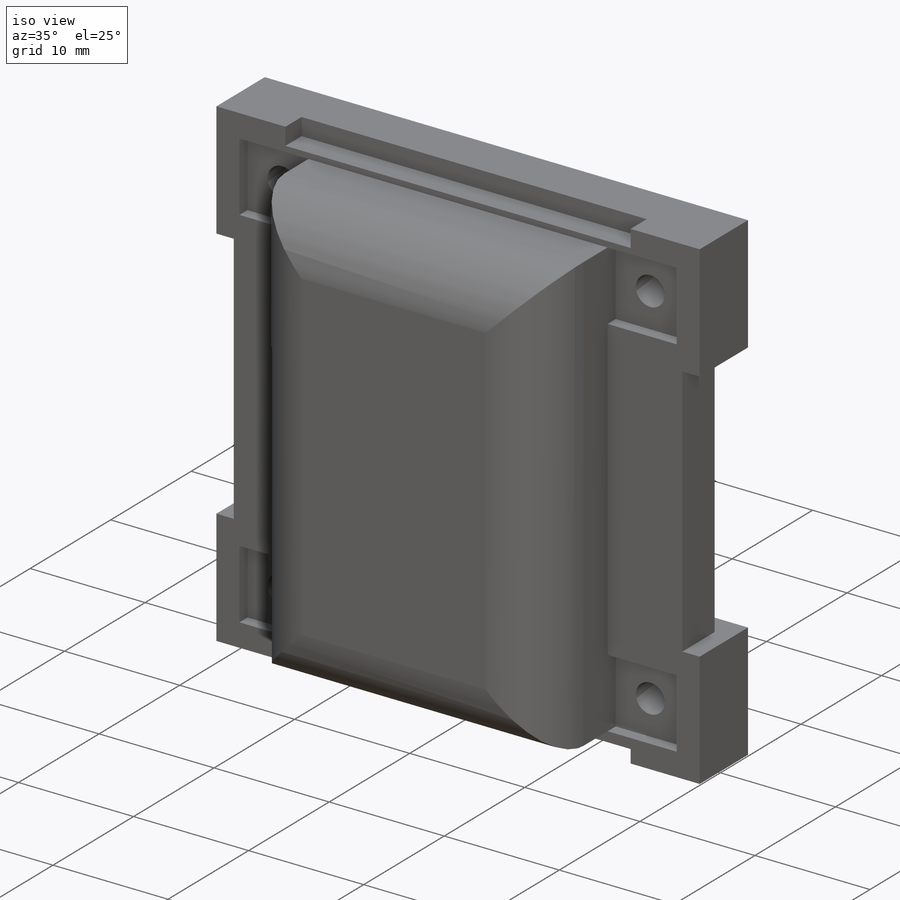
[diagram: iso view]
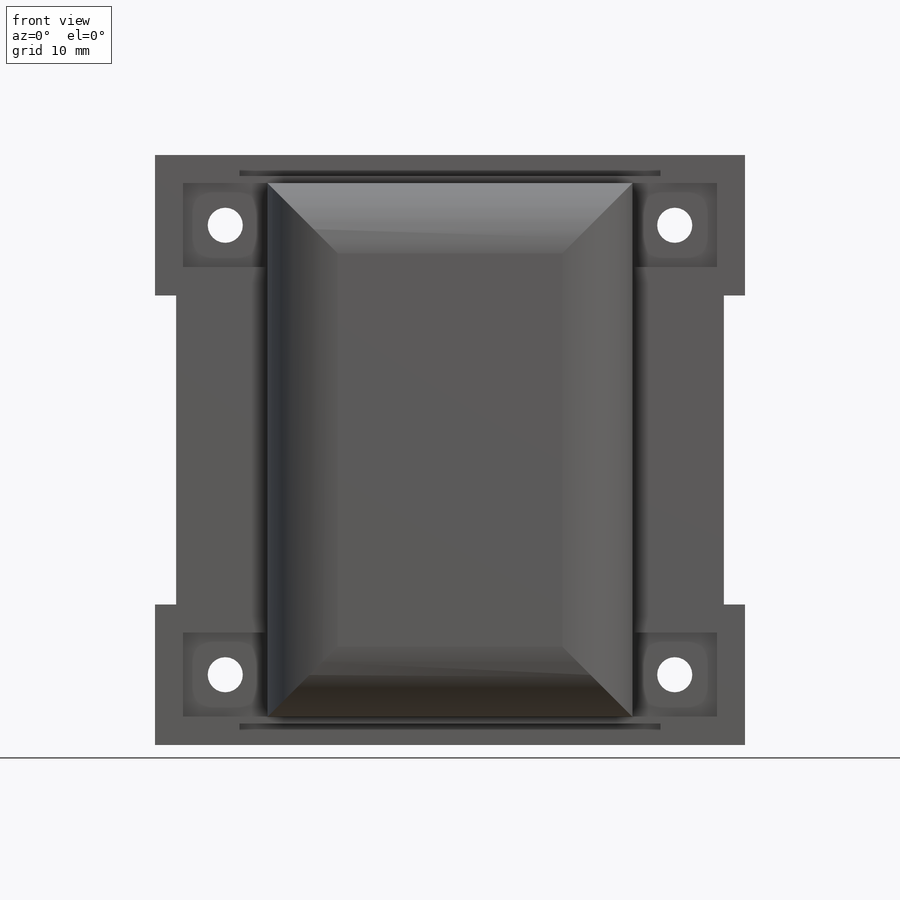
[diagram: front view]
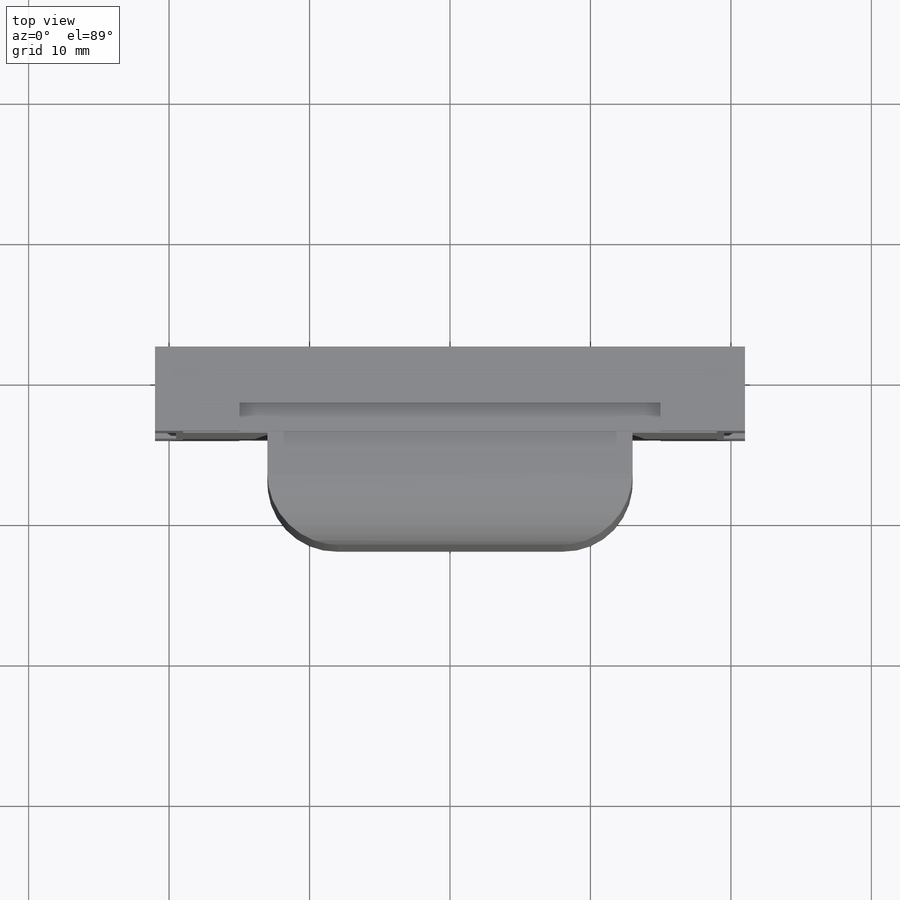
[diagram: top view]
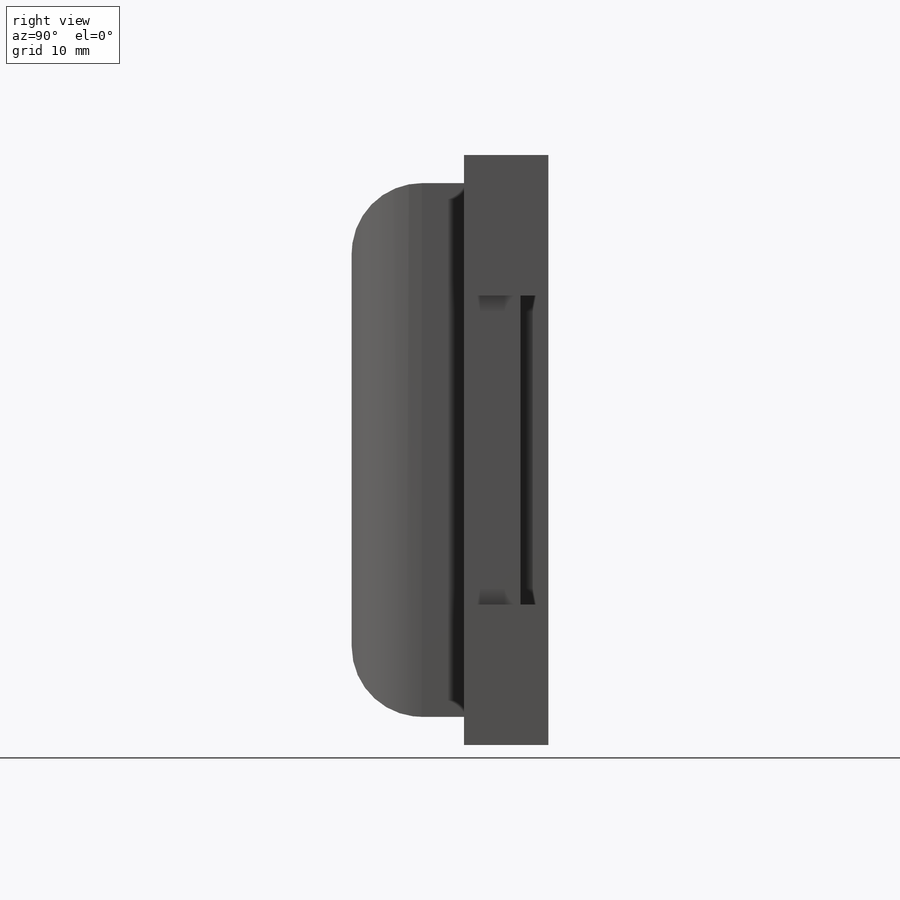
[diagram: right view]
SOLIDWORKS PART (.sldprt)
format: sldprt  version: not decoded by parser v0  size: 588,800 bytes
history: native  units: mm
features: sketch x11, extrude x6, plane x3, cut_extrude x3, material x1, fillet x1 + 2 further entries (+11 scaffold rows collapsed)
feature tree (38):
  scaffold x11  (default folders/planes/origin — collapsed)
  material  "材料 <未指定>"
  "ｻｰﾌｪｽ ﾎﾞﾃﾞｨ"
  "ｿﾘｯﾄﾞ ﾎﾞﾃﾞｨ"
  plane  "正面"
  plane  "平面"
  plane  "右側面"
  sketch  "ｽｹｯﾁ1"  dims[D1=38.0mm D2=26.0mm]
  extrude  "ﾎﾞｽ - 押し出し1"  Depth=12mm
  sketch  "ｽｹｯﾁ2"  dims[D1=22.0mm D2=34.0mm]
  cut_extrude  "ｶｯﾄ - 押し出し1"  Depth=10mm
  sketch  "ｽｹｯﾁ3"  dims[D1=7.0mm D2=2.0mm D3=10.0mm]
  sketch  "ｽｹｯﾁ4"  dims[D1=6.0mm D2=6.0mm D3=6.0mm D4=6.0mm D5=6.0mm D6=6.0mm D7=6.0mm D8=6.0mm D9=0.0mm]
  extrude  "ﾎﾞｽ - 押し出し2"  Depth=3mm
  fillet  "ﾌｨﾚｯﾄ1"  Radius=5mm
  sketch  "ｽｹｯﾁ6"  dims[D1=42.0mm D2=30.0mm D3=39.0mm D4=27.0mm D5=18.0mm]
  extrude  "ﾎﾞｽ - 押し出し3"  Depth=2mm
  sketch  "ｽｹｯﾁ5"  dims[c1.D1=~2.344542mm c1.D2=~2.344542mm c1.D3=~2.991303mm c1.D4=2.5mm c1.D5=2.5mm c1.D6=~2.732318mm c1.D7=2.5mm c1.D8=2.5mm c2.D1=3.0mm c2.D2=3.0mm c2.D3=3.0mm c2.D6=3.0mm c2.D9=3.0mm c2.D10=3.0mm c2.D11=3.0mm c2.D12=3.0mm]
  cut_extrude  "ｶｯﾄ - 押し出し4"  [1 undecoded]
  sketch  "ｽｹｯﾁ10"  dims[D1=40.0mm D2=40.0mm]
  sketch  "ｽｹｯﾁ7"  dims[D1=7.0mm D2=7.0mm D3=7.0mm D4=7.0mm D5=7.0mm D6=7.0mm D7=7.0mm D8=7.0mm]
  cut_extrude  "ｶｯﾄ - 押し出し5"  Depth=2mm
  sketch  "ｽｹｯﾁ8"  dims[c1.D1=10.0mm c1.D2=10.0mm c1.D3=10.0mm c1.D4=10.0mm c1.D5=10.0mm c1.D6=10.0mm c1.D7=10.0mm c1.D8=10.0mm c1.D9=0.5mm c1.D10=0.5mm c2.D9=0.5mm c2.D10=~0.835928mm c2.D11=~0.835928mm c3.D10=0.5mm c3.D11=1.0mm]
  extrude  "ﾎﾞｽ - 押し出し4"  Depth=4mm
  sketch  "ｽｹｯﾁ9"  dims[D1=30.0mm D2=18.0mm D3=21.0mm D4=33.0mm]
  extrude  "ﾎﾞｽ - 押し出し5"  Depth=2mm
  sketch  "ｽｹｯﾁ11"
  extrude  "ﾎﾞｽ - 押し出し9"  Depth=2mm
decode coverage: 19 of 21 modeling features carry decoded parameters; 2 rows unclassified (native names shown)
note: ~ marks probable driven/reference dimensions
note: 1 parameter value undecoded
note: suppression state not decoded; provenance and decode notes live in map.json
